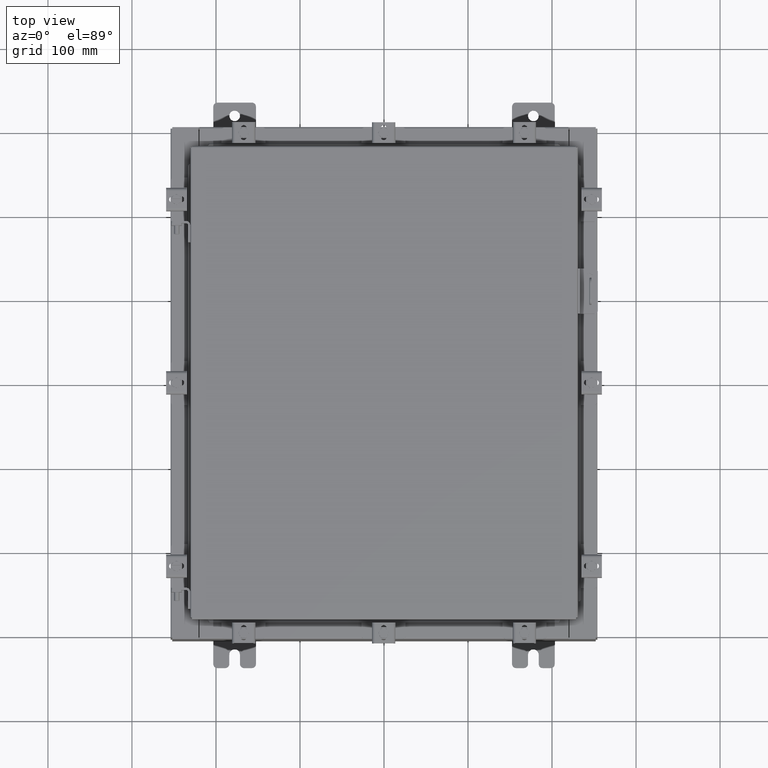
[diagram: clean part render]
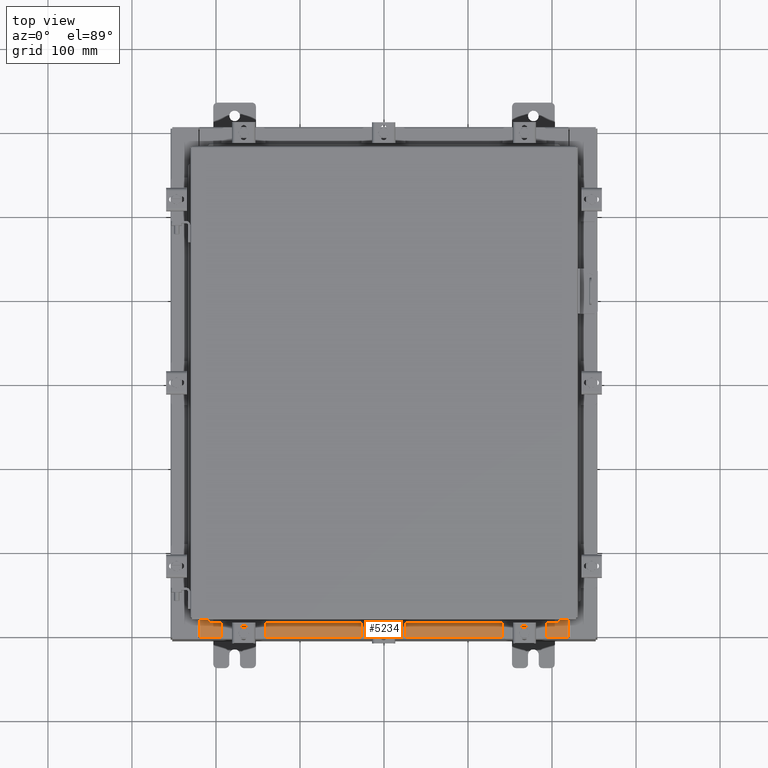
[diagram: same view with one face highlighted and labeled with its STEP entity id]
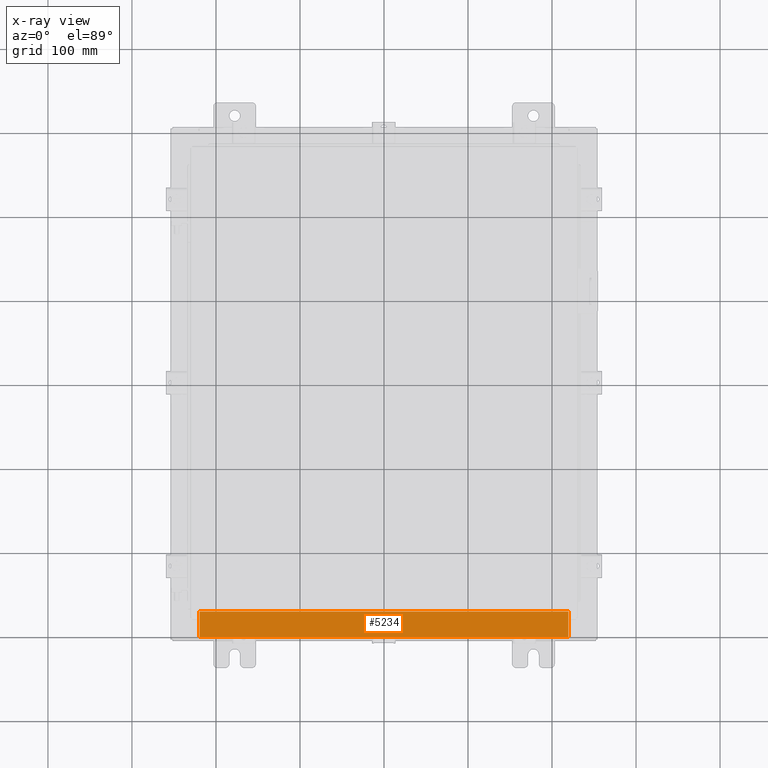
[diagram: x-ray of the same camera — body ghosted, the highlighted face saturated]
A machine part, top view. The second image highlights one B-rep face of the part: STEP entity #5234.
The next image is the same camera in x-ray: the body ghosted, the highlighted face saturated — about 0% of this face is hidden behind the body in this view.
In plain terms, the highlighted planar face has unit normal (-0, -0, 1).
Its self-contained STEP definition (entity closure, byte-faithful):
#814 = VECTOR ( 'NONE', #21297, 39.37007874015748100 ) ;
#1204 = VERTEX_POINT ( 'NONE', #19647 ) ;
#1502 = AXIS2_PLACEMENT_3D ( 'NONE', #21606, #7709, #19938 ) ;
#2034 = ORIENTED_EDGE ( 'NONE', *, *, #13519, .T. ) ;
#2627 = DIRECTION ( 'NONE',  ( -1.000000000000000000, 0.0000000000000000000, 0.0000000000000000000 ) ) ;
#4225 = CARTESIAN_POINT ( 'NONE',  ( -8.637200000000000000, -0.08770000000000000000, 3.000000000000000900 ) ) ;
#5001 = CARTESIAN_POINT ( 'NONE',  ( -8.637200000000000000, -1.287299999999999200, 3.000000000000005300 ) ) ;
#5234 = ADVANCED_FACE ( 'NONE', ( #9064 ), #18186, .T. ) ;
#5432 = LINE ( 'NONE', #19625, #814 ) ;
#6421 = ORIENTED_EDGE ( 'NONE', *, *, #11110, .F. ) ;
#7164 = CARTESIAN_POINT ( 'NONE',  ( -8.637200000000000000, -0.07469999999999973900, 3.000000000000000900 ) ) ;
#7709 = DIRECTION ( 'NONE',  ( 0.0000000000000000000, 3.566381192773190000E-015, 1.000000000000000000 ) ) ;
#8341 = VERTEX_POINT ( 'NONE', #15464 ) ;
#8651 = ORIENTED_EDGE ( 'NONE', *, *, #12425, .F. ) ;
#9064 = FACE_OUTER_BOUND ( 'NONE', #14814, .T. ) ;
#11110 = EDGE_CURVE ( 'NONE', #1204, #12839, #18404, .T. ) ;
#12425 = EDGE_CURVE ( 'NONE', #12839, #19869, #15889, .T. ) ;
#12839 = VERTEX_POINT ( 'NONE', #5001 ) ;
#13115 = CARTESIAN_POINT ( 'NONE',  ( 8.637200000000000000, -1.287299999999999900, 3.000000000000005300 ) ) ;
#13519 = EDGE_CURVE ( 'NONE', #8341, #19869, #5432, .T. ) ;
#13739 = VECTOR ( 'NONE', #2627, 39.37007874015748100 ) ;
#14035 = EDGE_CURVE ( 'NONE', #8341, #1204, #19368, .T. ) ;
#14721 = VECTOR ( 'NONE', #22554, 39.37007874015748100 ) ;
#14814 = EDGE_LOOP ( 'NONE', ( #8651, #6421, #16363, #2034 ) ) ;
#15464 = CARTESIAN_POINT ( 'NONE',  ( 8.637200000000000000, -0.08769999999999965300, 3.000000000000000900 ) ) ;
#15889 = LINE ( 'NONE', #7164, #20521 ) ;
#16363 = ORIENTED_EDGE ( 'NONE', *, *, #14035, .F. ) ;
#18186 = PLANE ( 'NONE',  #1502 ) ;
#18404 = LINE ( 'NONE', #13115, #13739 ) ;
#19061 = CARTESIAN_POINT ( 'NONE',  ( 8.637200000000000000, -1.300299999999999800, 3.000000000000005300 ) ) ;
#19368 = LINE ( 'NONE', #19061, #14721 ) ;
#19625 = CARTESIAN_POINT ( 'NONE',  ( -2.773851121247453900E-018, -0.08770000000000000000, 3.000000000000001300 ) ) ;
#19647 = CARTESIAN_POINT ( 'NONE',  ( 8.637200000000000000, -1.287299999999999900, 3.000000000000005300 ) ) ;
#19869 = VERTEX_POINT ( 'NONE', #4225 ) ;
#19938 = DIRECTION ( 'NONE',  ( 0.0000000000000000000, -1.000000000000000000, 3.566381192773190000E-015 ) ) ;
#20521 = VECTOR ( 'NONE', #21148, 39.37007874015748100 ) ;
#21148 = DIRECTION ( 'NONE',  ( -0.0000000000000000000, 1.000000000000000000, -3.566381192773190000E-015 ) ) ;
#21297 = DIRECTION ( 'NONE',  ( -1.000000000000000000, 3.162886113166609200E-017, -1.128005754888089100E-031 ) ) ;
#21606 = CARTESIAN_POINT ( 'NONE',  ( 0.0000000000000000000, 1.069354855923099900E-014, 3.000000000000000900 ) ) ;
#22554 = DIRECTION ( 'NONE',  ( -0.0000000000000000000, -1.000000000000000000, 3.566381192773190000E-015 ) ) ;